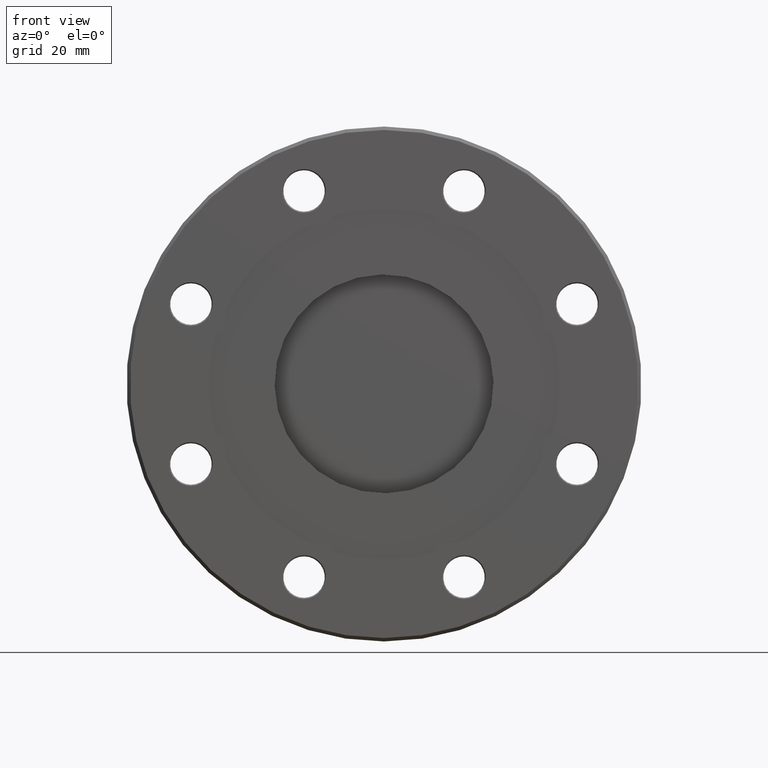
[diagram: clean part render]
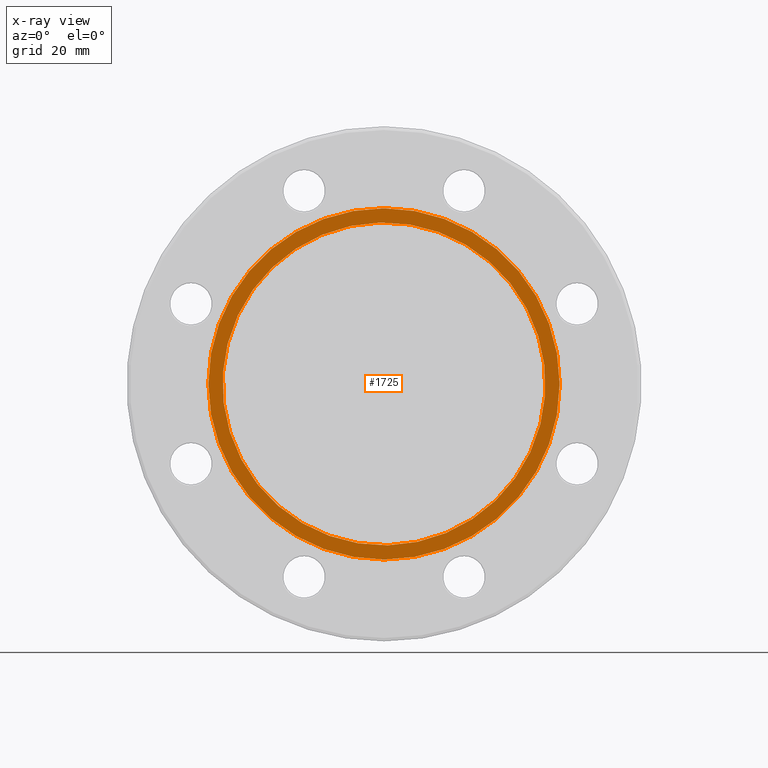
[diagram: x-ray — body ghosted, one internal face saturated and labeled with its STEP entity id]
A machine part, front view, then the same camera in x-ray: the body is ghosted and one INTERNAL B-rep face — a face not visible from any outside direction — is saturated and labeled: STEP entity #1725.
In plain terms, the highlighted planar face has unit normal (0, -1, 0).
Its self-contained STEP definition (entity closure, byte-faithful):
#112 = CARTESIAN_POINT ( 'NONE',  ( 0.000000000000000000, -0.2425000000000000488, 1.524999999999999911 ) ) ;
#150 = AXIS2_PLACEMENT_3D ( 'NONE', #450, #1361, #2543 ) ;
#237 = CARTESIAN_POINT ( 'NONE',  ( 2.863968237717336742E-18, -0.2425000000000000211, 3.229309567746796965E-18 ) ) ;
#268 = DIRECTION ( 'NONE',  ( 0.000000000000000000, 0.000000000000000000, 1.000000000000000000 ) ) ;
#361 = CARTESIAN_POINT ( 'NONE',  ( -0.4746614338591895188, -0.2425000000000000211, -1.318567528507492703 ) ) ;
#432 = CIRCLE ( 'NONE', #625, 1.524999999999999911 ) ;
#450 = CARTESIAN_POINT ( 'NONE',  ( -1.376500000000000279, -0.2425000000000000211, 0.000000000000000000 ) ) ;
#452 = CARTESIAN_POINT ( 'NONE',  ( 0.4746614338591893523, -0.2425000000000000211, 1.318567528507492925 ) ) ;
#497 = VERTEX_POINT ( 'NONE', #452 ) ;
#625 = AXIS2_PLACEMENT_3D ( 'NONE', #1924, #784, #1211 ) ;
#643 = AXIS2_PLACEMENT_3D ( 'NONE', #2653, #1487, #1952 ) ;
#653 = VERTEX_POINT ( 'NONE', #688 ) ;
#688 = CARTESIAN_POINT ( 'NONE',  ( 1.867586368699713573E-16, -0.2425000000000000488, -1.524999999999999911 ) ) ;
#784 = DIRECTION ( 'NONE',  ( -0.000000000000000000, 1.000000000000000000, -0.000000000000000000 ) ) ;
#850 = DIRECTION ( 'NONE',  ( 0.000000000000000000, 0.000000000000000000, 1.000000000000000000 ) ) ;
#868 = AXIS2_PLACEMENT_3D ( 'NONE', #2873, #1497, #850 ) ;
#883 = CIRCLE ( 'NONE', #1720, 1.401400657923214776 ) ;
#908 = EDGE_LOOP ( 'NONE', ( #1244, #1266 ) ) ;
#960 = CIRCLE ( 'NONE', #868, 1.401400657923214776 ) ;
#1211 = DIRECTION ( 'NONE',  ( 0.000000000000000000, 0.000000000000000000, 1.000000000000000000 ) ) ;
#1244 = ORIENTED_EDGE ( 'NONE', *, *, #1828, .T. ) ;
#1266 = ORIENTED_EDGE ( 'NONE', *, *, #2790, .T. ) ;
#1361 = DIRECTION ( 'NONE',  ( 0.000000000000000000, -1.000000000000000000, 0.000000000000000000 ) ) ;
#1409 = VERTEX_POINT ( 'NONE', #361 ) ;
#1487 = DIRECTION ( 'NONE',  ( -0.000000000000000000, 1.000000000000000000, -0.000000000000000000 ) ) ;
#1497 = DIRECTION ( 'NONE',  ( -0.000000000000000000, 1.000000000000000000, -0.000000000000000000 ) ) ;
#1638 = EDGE_CURVE ( 'NONE', #2880, #653, #432, .T. ) ;
#1720 = AXIS2_PLACEMENT_3D ( 'NONE', #237, #2071, #268 ) ;
#1725 = ADVANCED_FACE ( 'NONE', ( #1842, #1786 ), #2768, .T. ) ;
#1766 = CIRCLE ( 'NONE', #643, 1.524999999999999911 ) ;
#1786 = FACE_OUTER_BOUND ( 'NONE', #2712, .T. ) ;
#1828 = EDGE_CURVE ( 'NONE', #1409, #497, #883, .T. ) ;
#1842 = FACE_BOUND ( 'NONE', #908, .T. ) ;
#1903 = ORIENTED_EDGE ( 'NONE', *, *, #1945, .F. ) ;
#1924 = CARTESIAN_POINT ( 'NONE',  ( 0.000000000000000000, -0.2425000000000000488, 0.000000000000000000 ) ) ;
#1945 = EDGE_CURVE ( 'NONE', #653, #2880, #1766, .T. ) ;
#1952 = DIRECTION ( 'NONE',  ( 0.000000000000000000, 0.000000000000000000, 1.000000000000000000 ) ) ;
#2071 = DIRECTION ( 'NONE',  ( -0.000000000000000000, 1.000000000000000000, -0.000000000000000000 ) ) ;
#2543 = DIRECTION ( 'NONE',  ( 0.000000000000000000, -0.000000000000000000, -1.000000000000000000 ) ) ;
#2565 = ORIENTED_EDGE ( 'NONE', *, *, #1638, .F. ) ;
#2653 = CARTESIAN_POINT ( 'NONE',  ( 0.000000000000000000, -0.2425000000000000488, 0.000000000000000000 ) ) ;
#2712 = EDGE_LOOP ( 'NONE', ( #2565, #1903 ) ) ;
#2768 = PLANE ( 'NONE',  #150 ) ;
#2790 = EDGE_CURVE ( 'NONE', #497, #1409, #960, .T. ) ;
#2873 = CARTESIAN_POINT ( 'NONE',  ( 2.863968237717336742E-18, -0.2425000000000000211, 3.229309567746796965E-18 ) ) ;
#2880 = VERTEX_POINT ( 'NONE', #112 ) ;